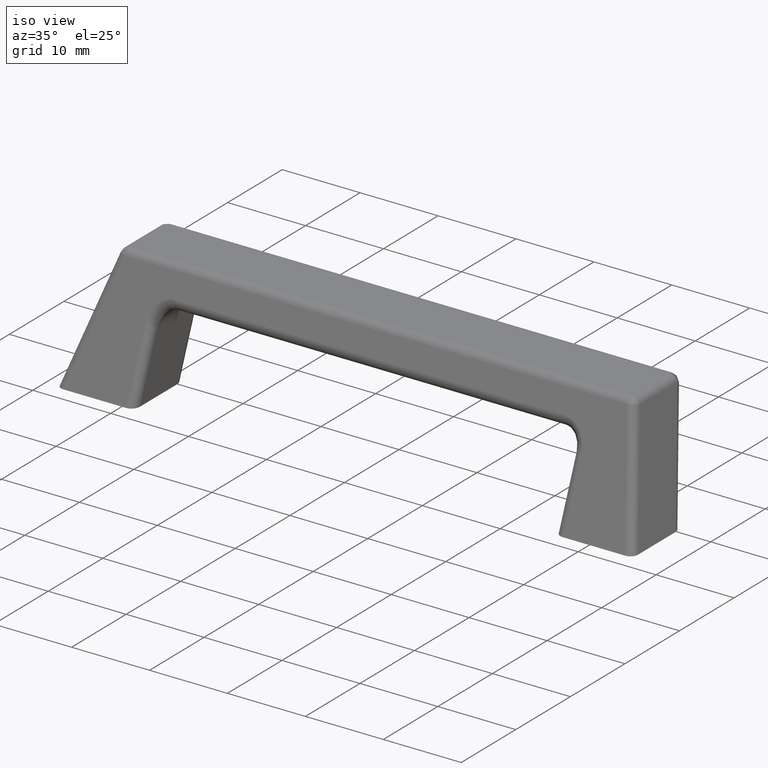
[diagram: clean part render]
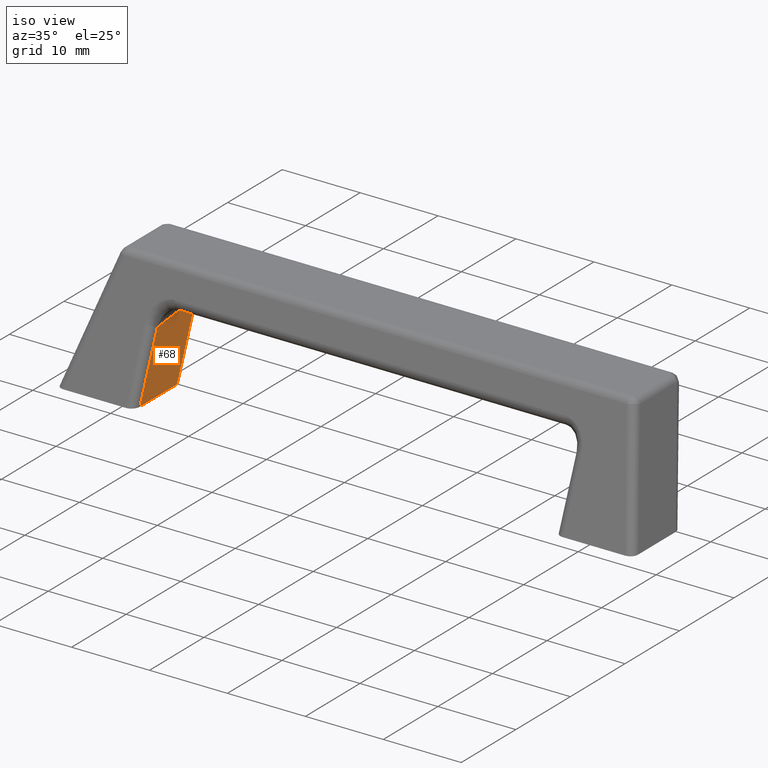
[diagram: same view with one face highlighted and labeled with its STEP entity id]
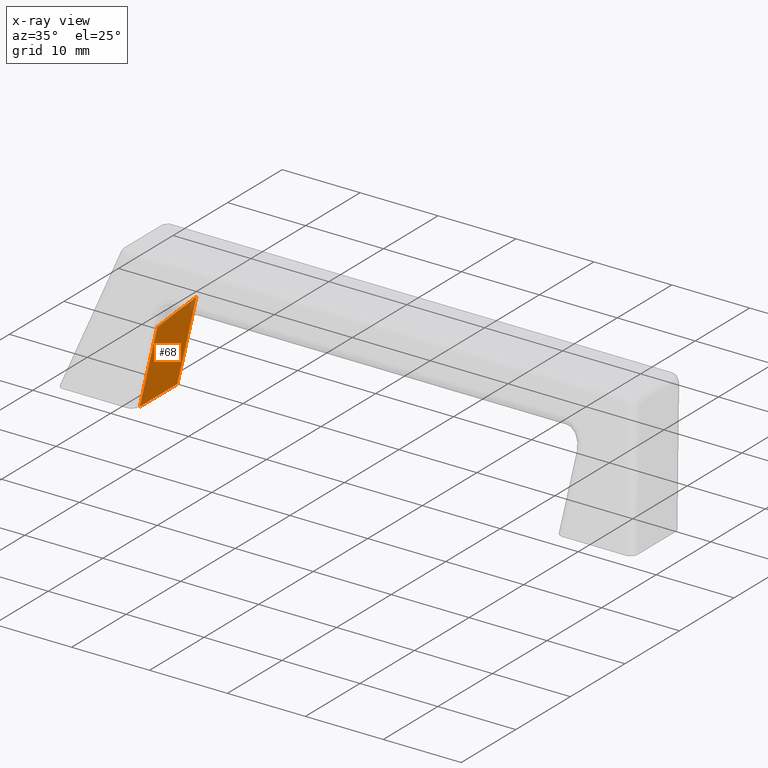
[diagram: x-ray of the same camera — body ghosted, the highlighted face saturated]
A machine part, iso view. The second image highlights one B-rep face of the part: STEP entity #68.
The next image is the same camera in x-ray: the body ghosted, the highlighted face saturated — about 2% of this face is hidden behind the body in this view.
In plain terms, the highlighted planar face has unit normal (-1, 0, 0).
Its self-contained STEP definition (entity closure, byte-faithful):
#68=ADVANCED_FACE('',(#361),#360,.F.);
#360=PLANE('',#1215);
#361=FACE_OUTER_BOUND('',#1216,.T.);
#1212=CARTESIAN_POINT('',(-2.70000000000E+01,4.12787561181E-02,-8.77966108608E-01));
#1213=DIRECTION('',(-1.00000000000E+00,0.00000000000E+00,0.00000000000E+00));
#1214=DIRECTION('',(0.00000000000E+00,0.00000000000E+00,1.00000000000E+00));
#1215=AXIS2_PLACEMENT_3D('',#1212,#1213,#1214);
#1216=EDGE_LOOP('',(#1386,#1387,#1388,#1389));
#1386=ORIENTED_EDGE('',*,*,#1534,.F.);
#1387=ORIENTED_EDGE('',*,*,#1494,.T.);
#1388=ORIENTED_EDGE('',*,*,#1528,.T.);
#1389=ORIENTED_EDGE('',*,*,#1489,.T.);
#1489=EDGE_CURVE('',#1734,#1753,#1761,.T.);
#1494=EDGE_CURVE('',#1774,#1788,#1795,.T.);
#1528=EDGE_CURVE('',#1788,#1734,#2020,.T.);
#1534=EDGE_CURVE('',#1774,#1753,#2056,.T.);
#1734=VERTEX_POINT('',#2273);
#1753=VERTEX_POINT('',#2286);
#1761=LINE('',#2291,#2292);
#1774=VERTEX_POINT('',#2298);
#1788=VERTEX_POINT('',#2306);
#1795=LINE('',#2311,#2312);
#2020=LINE('',#2454,#2455);
#2056=LINE('',#2472,#2473);
#2273=CARTESIAN_POINT('',(-2.70000000000E+01,4.28439923338E+00,8.01899952088E+00));
#2286=CARTESIAN_POINT('',(-2.70000000000E+01,1.07702262451E+00,0.00000000000E+00));
#2291=CARTESIAN_POINT('',(-2.70000000000E+01,4.28439923338E+00,8.01899952088E+00));
#2292=VECTOR('',#2293,8.63664390993E+00);
#2293=DIRECTION('',(0.00000000000E+00,-3.71368397530E-01,-9.28485602105E-01));
#2298=CARTESIAN_POINT('',(-2.70000000000E+01,7.92298338782E+00,0.00000000000E+00));
#2306=CARTESIAN_POINT('',(-2.70000000000E+01,1.14344613084E+01,8.77966108608E+00));
#2311=CARTESIAN_POINT('',(-2.70000000000E+01,7.92298338782E+00,0.00000000000E+00));
#2312=VECTOR('',#2313,9.45584083905E+00);
#2313=DIRECTION('',(0.00000000000E+00,3.71355438442E-01,9.28490785274E-01));
#2454=CARTESIAN_POINT('',(-2.70000000000E+01,1.14344613084E+01,8.77966108608E+00));
#2455=VECTOR('',#2456,7.19040984187E+00);
#2456=DIRECTION('',(0.00000000000E+00,-9.94388669395E-01,-1.05788346135E-01));
#2472=CARTESIAN_POINT('',(-2.70000000000E+01,7.92298338782E+00,0.00000000000E+00));
#2473=VECTOR('',#2474,6.84596076331E+00);
#2474=DIRECTION('',(0.00000000000E+00,-1.00000000000E+00,0.00000000000E+00));